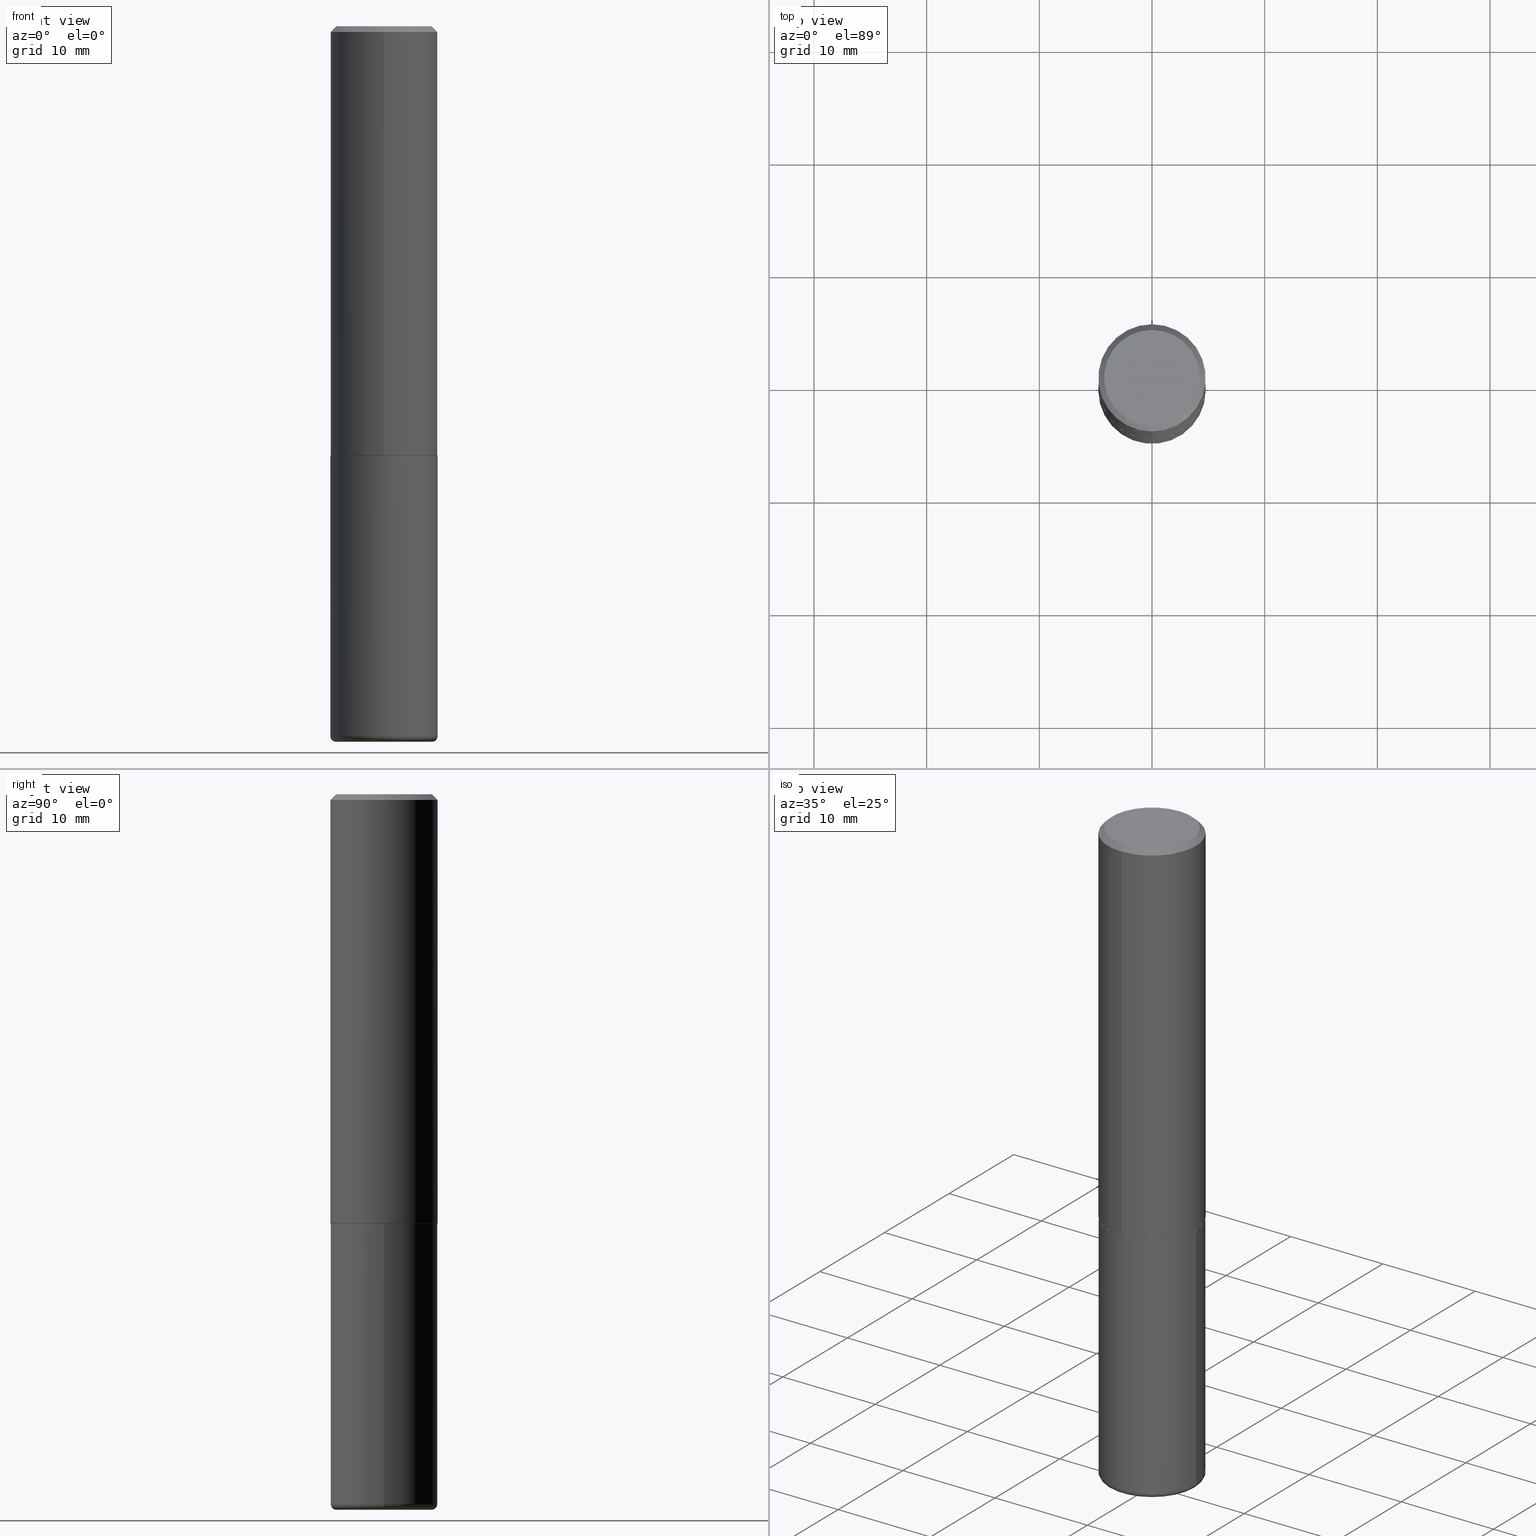
[diagram: canonical four-view strip — front | top / right | iso, engineering-drawing reading convention]
A machine part, canonical four-view strip (front | top / right | iso — engineering-drawing reading convention). The complete STEP part file that produces these views, byte-faithful:
ISO-10303-21;
HEADER;
FILE_DESCRIPTION (( 'STEP AP203' ),
    '1' );
FILE_NAME ('38329.STEP',
    '2024-03-02T23:06:02',
    ( '' ),
    ( '' ),
    'SwSTEP 2.0',
    'SolidWorks 2023',
    '' );
FILE_SCHEMA (( 'CONFIG_CONTROL_DESIGN' ));
ENDSEC;

DATA;
#1 = ORIENTED_EDGE ( 'NONE', *, *, #374, .F. ) ;
#2 = CARTESIAN_POINT ( 'NONE',  ( 1.169646248512448412E-15, 0.1674999999999998157, -4.973995980919783120E-16 ) ) ;
#3 = EDGE_CURVE ( 'NONE', #104, #303, #305, .T. ) ;
#4 = VERTEX_POINT ( 'NONE', #50 ) ;
#5 = FACE_OUTER_BOUND ( 'NONE', #76, .T. ) ;
#6 = CARTESIAN_POINT ( 'NONE',  ( 6.113672015462842613E-29, -8.728703347107866520E-15, -2.500000000000000444 ) ) ;
#7 = DIRECTION ( 'NONE',  ( 1.000000000000000000, -6.982962677686265922E-15, 4.876176775795935793E-29 ) ) ;
#8 = DIRECTION ( 'NONE',  ( 6.982962677686266711E-15, 1.000000000000000000, -3.483106191921935949E-15 ) ) ;
#9 = CARTESIAN_POINT ( 'NONE',  ( 0.1875000000000000278, -6.546527510330893974E-15, -1.500000000000000222 ) ) ;
#10 = CIRCLE ( 'NONE', #46, 0.02000000000000016348 ) ;
#11 = DIRECTION ( 'NONE',  ( -2.445468806185136597E-29, 3.491481338843145583E-15, 1.000000000000000000 ) ) ;
#12 =( CONVERSION_BASED_UNIT ( 'INCH', #247 ) LENGTH_UNIT ( ) NAMED_UNIT ( #93 ) );
#13 = CARTESIAN_POINT ( 'NONE',  ( 6.064762639339139522E-29, -8.658873720331001644E-15, -2.480000000000000426 ) ) ;
#14 = CIRCLE ( 'NONE', #84, 0.1874999999999999722 ) ;
#15 = PRODUCT_RELATED_PRODUCT_CATEGORY ( 'detail', '', ( #203 ) ) ;
#16 = EDGE_LOOP ( 'NONE', ( #110, #62 ) ) ;
#17 = EDGE_CURVE ( 'NONE', #387, #4, #384, .T. ) ;
#18 = CARTESIAN_POINT ( 'NONE',  ( 0.1675000000000000100, -9.898349595620316510E-15, -2.500000000000000444 ) ) ;
#19 = ORIENTED_EDGE ( 'NONE', *, *, #159, .T. ) ;
#20 = EDGE_LOOP ( 'NONE', ( #137, #358, #199, #298 ) ) ;
#21 = CIRCLE ( 'NONE', #220, 0.1674999999999998157 ) ;
#22 = PERSON_AND_ORGANIZATION ( #325, #343 ) ;
#23 = APPROVAL_PERSON_ORGANIZATION ( #22, #378, #412 ) ;
#24 = EDGE_CURVE ( 'NONE', #201, #330, #318, .T. ) ;
#25 = EDGE_LOOP ( 'NONE', ( #392, #364, #362, #138 ) ) ;
#26 = CARTESIAN_POINT ( 'NONE',  ( 3.664745616567681106E-29, -5.235179945962687995E-15, -1.499000000000000110 ) ) ;
#27 = EDGE_LOOP ( 'NONE', ( #204, #270, #228, #300 ) ) ;
#28 = DATE_TIME_ROLE ( 'creation_date' ) ;
#29 = AXIS2_PLACEMENT_3D ( 'NONE', #183, #11, #47 ) ;
#30 = VERTEX_POINT ( 'NONE', #311 ) ;
#31 = DIRECTION ( 'NONE',  ( -6.982962677686265922E-15, -1.000000000000000000, 2.913971193241877611E-15 ) ) ;
#32 = EDGE_LOOP ( 'NONE', ( #66, #170, #332, #336 ) ) ;
#33 = CARTESIAN_POINT ( 'NONE',  ( -1.217738394604445850E-15, -0.1674999999999998157, 7.601560558815852241E-16 ) ) ;
#34 = CC_DESIGN_DATE_AND_TIME_ASSIGNMENT ( #357, #28, ( #194 ) ) ;
#35 = ORIENTED_EDGE ( 'NONE', *, *, #17, .T. ) ;
#36 = LINE ( 'NONE', #359, #58 ) ;
#37 = AXIS2_PLACEMENT_3D ( 'NONE', #227, #198, #177 ) ;
#38 = DIRECTION ( 'NONE',  ( -2.444793606782976109E-29, 3.492448262817002669E-15, 1.000000000000000000 ) ) ;
#39 = DIRECTION ( 'NONE',  ( 4.937700262164540942E-15, 0.7071067811865441310, -0.7071067811865509034 ) ) ;
#40 = EDGE_CURVE ( 'NONE', #303, #417, #192, .T. ) ;
#41 = LINE ( 'NONE', #212, #128 ) ;
#42 = FACE_OUTER_BOUND ( 'NONE', #27, .T. ) ;
#43 = EDGE_CURVE ( 'NONE', #330, #201, #307, .T. ) ;
#44 = DIRECTION ( 'NONE',  ( 0.000000000000000000, 0.000000000000000000, 1.000000000000000000 ) ) ;
#45 = VECTOR ( 'NONE', #146, 39.37007874015748143 ) ;
#46 = AXIS2_PLACEMENT_3D ( 'NONE', #283, #371, #160 ) ;
#47 = DIRECTION ( 'NONE',  ( 1.000000000000000000, -6.982962677686265922E-15, 4.876176775795935793E-29 ) ) ;
#48 = ADVANCED_FACE ( 'NONE', ( #309 ), #97, .T. ) ;
#49 = CALENDAR_DATE ( 2024, 2, 3 ) ;
#50 = CARTESIAN_POINT ( 'NONE',  ( -0.1675000000000000100, -7.432575177745255527E-15, -2.500000000000000444 ) ) ;
#51 = APPROVAL_STATUS ( 'not_yet_approved' ) ;
#52 = DIRECTION ( 'NONE',  ( -6.982962677686265922E-15, -1.000000000000000000, 2.929595703661408850E-15 ) ) ;
#53 = ORIENTED_EDGE ( 'NONE', *, *, #43, .F. ) ;
#54 = DIRECTION ( 'NONE',  ( -6.982962677686265922E-15, -1.000000000000000000, 2.913971193241877611E-15 ) ) ;
#55 = PERSON_AND_ORGANIZATION ( #325, #343 ) ;
#56 = DIRECTION ( 'NONE',  ( -6.982962677686266711E-15, -1.000000000000000000, 3.492448262817002274E-15 ) ) ;
#57 = ORIENTED_EDGE ( 'NONE', *, *, #121, .F. ) ;
#58 = VECTOR ( 'NONE', #77, 39.37007874015748143 ) ;
#59 = CC_DESIGN_APPROVAL ( #284, ( #299 ) ) ;
#60 = DIRECTION ( 'NONE',  ( -2.444793606782976109E-29, 3.492448262817002669E-15, 1.000000000000000000 ) ) ;
#61 = DIRECTION ( 'NONE',  ( -6.982962677686265922E-15, -1.000000000000000000, 2.929595703661408850E-15 ) ) ;
#62 = ORIENTED_EDGE ( 'NONE', *, *, #89, .F. ) ;
#63 = DATE_AND_TIME ( #292, #386 ) ;
#64 = CARTESIAN_POINT ( 'NONE',  ( -1.309305502066175600E-15, -0.1875000000000000833, 6.548340492781882223E-16 ) ) ;
#65 = ADVANCED_FACE ( 'NONE', ( #80 ), #155, .T. ) ;
#66 = ORIENTED_EDGE ( 'NONE', *, *, #182, .F. ) ;
#67 = LINE ( 'NONE', #238, #253 ) ;
#68 = AXIS2_PLACEMENT_3D ( 'NONE', #13, #406, #317 ) ;
#69 = EDGE_LOOP ( 'NONE', ( #274, #230, #327, #208 ) ) ;
#70 = ADVANCED_FACE ( 'NONE', ( #42 ), #320, .T. ) ;
#71 = DIRECTION ( 'NONE',  ( 6.982962677686265922E-15, 1.000000000000000000, -3.492448262817002669E-15 ) ) ;
#72 = PRODUCT_DEFINITION_SHAPE ( 'NONE', 'NONE',  #194 ) ;
#73 = ORIENTED_EDGE ( 'NONE', *, *, #153, .T. ) ;
#74 = ADVANCED_FACE ( 'NONE', ( #286 ), #126, .T. ) ;
#75 = CARTESIAN_POINT ( 'NONE',  ( -0.1875000000000001110, -7.326606090780813796E-15, -2.480000000000000426 ) ) ;
#76 = EDGE_LOOP ( 'NONE', ( #366, #394 ) ) ;
#77 = DIRECTION ( 'NONE',  ( -2.445468806185136877E-29, 3.491481338843145188E-15, 1.000000000000000000 ) ) ;
#78 = AXIS2_PLACEMENT_3D ( 'NONE', #123, #154, #161 ) ;
#79 = CARTESIAN_POINT ( 'NONE',  ( 4.889587213565963568E-31, -6.984896525634020819E-17, -0.02000000000000004205 ) ) ;
#80 = FACE_OUTER_BOUND ( 'NONE', #413, .T. ) ;
#81 = LINE ( 'NONE', #341, #337 ) ;
#82 = ADVANCED_FACE ( 'NONE', ( #380 ), #256, .T. ) ;
#83 = DIRECTION ( 'NONE',  ( -6.982962677686265922E-15, -1.000000000000000000, 2.929595703661408850E-15 ) ) ;
#84 = AXIS2_PLACEMENT_3D ( 'NONE', #79, #398, #241 ) ;
#85 = CONICAL_SURFACE ( 'NONE', #399, 0.1864999999999999714, 0.7853981633973801113 ) ;
#86 = FACE_OUTER_BOUND ( 'NONE', #20, .T. ) ;
#87 = PERSON_AND_ORGANIZATION ( #325, #343 ) ;
#88 = DIRECTION ( 'NONE',  ( -2.445468806185136597E-29, 3.491481338843145583E-15, 1.000000000000000000 ) ) ;
#89 = EDGE_CURVE ( 'NONE', #4, #387, #189, .T. ) ;
#90 = AXIS2_PLACEMENT_3D ( 'NONE', #346, #251, #287 ) ;
#91 =( GEOMETRIC_REPRESENTATION_CONTEXT ( 3 ) GLOBAL_UNCERTAINTY_ASSIGNED_CONTEXT ( ( #125 ) ) GLOBAL_UNIT_ASSIGNED_CONTEXT ( ( #12, #114, #219 ) ) REPRESENTATION_CONTEXT ( 'NONE', 'WORKASPACE' ) );
#92 = APPROVAL_DATE_TIME ( #63, #378 ) ;
#93 = DIMENSIONAL_EXPONENTS ( 1.000000000000000000, 0.000000000000000000, 0.000000000000000000, 0.000000000000000000, 0.000000000000000000, 0.000000000000000000, 0.000000000000000000 ) ;
#94 = CARTESIAN_POINT ( 'NONE',  ( 0.000000000000000000, 0.000000000000000000, 0.000000000000000000 ) ) ;
#95 = PLANE ( 'NONE',  #37 ) ;
#96 = DATE_TIME_ROLE ( 'classification_date' ) ;
#97 = TOROIDAL_SURFACE ( 'NONE', #78, 0.1675000000000000100, 0.02000000000000016348 ) ;
#98 = COORDINATED_UNIVERSAL_TIME_OFFSET ( 5, 0, .BEHIND. ) ;
#99 = LOCAL_TIME ( 18, 6, 2.000000000000000000, #350 ) ;
#100 = CC_DESIGN_DATE_AND_TIME_ASSIGNMENT ( #132, #96, ( #299 ) ) ;
#101 = EDGE_LOOP ( 'NONE', ( #242, #416, #264, #174 ) ) ;
#102 = ORIENTED_EDGE ( 'NONE', *, *, #89, .T. ) ;
#103 = MANIFOLD_SOLID_BREP ( 'Body-Move/Copy2[1]', #250 ) ;
#104 = VERTEX_POINT ( 'NONE', #145 ) ;
#105 = AXIS2_PLACEMENT_3D ( 'NONE', #151, #376, #314 ) ;
#106 = PLANE ( 'NONE',  #342 ) ;
#107 = ORIENTED_EDGE ( 'NONE', *, *, #397, .T. ) ;
#108 = EDGE_CURVE ( 'NONE', #167, #30, #396, .T. ) ;
#109 = DIRECTION ( 'NONE',  ( -4.851104656540957175E-15, -0.7071067811865490160, -0.7071067811865460184 ) ) ;
#110 = ORIENTED_EDGE ( 'NONE', *, *, #17, .F. ) ;
#111 = DIRECTION ( 'NONE',  ( -2.445468806185136597E-29, 3.491481338843145583E-15, 1.000000000000000000 ) ) ;
#112 = DIRECTION ( 'NONE',  ( -6.982962677686265922E-15, -1.000000000000000000, 3.492448262817002669E-15 ) ) ;
#113 = AXIS2_PLACEMENT_3D ( 'NONE', #243, #304, #7 ) ;
#114 =( NAMED_UNIT ( * ) PLANE_ANGLE_UNIT ( ) SI_UNIT ( $, .RADIAN. ) );
#115 = APPLICATION_PROTOCOL_DEFINITION ( 'international standard', 'config_control_design', 1994, #261 ) ;
#116 = CC_DESIGN_PERSON_AND_ORGANIZATION_ASSIGNMENT ( #258, #197, ( #194 ) ) ;
#117 =( LENGTH_UNIT ( ) NAMED_UNIT ( * ) SI_UNIT ( $, .METRE. ) );
#118 = AXIS2_PLACEMENT_3D ( 'NONE', #262, #195, #61 ) ;
#119 = PERSON_AND_ORGANIZATION_ROLE ( 'design_owner' ) ;
#120 = DIRECTION ( 'NONE',  ( 2.438088387897960049E-29, -3.491481338843145188E-15, -1.000000000000000000 ) ) ;
#121 = EDGE_CURVE ( 'NONE', #271, #213, #21, .T. ) ;
#122 = MECHANICAL_CONTEXT ( 'NONE', #261, 'mechanical' ) ;
#123 = CARTESIAN_POINT ( 'NONE',  ( 6.064762639339139522E-29, -8.658873720331001644E-15, -2.480000000000000426 ) ) ;
#124 = APPROVAL_STATUS ( 'not_yet_approved' ) ;
#125 = UNCERTAINTY_MEASURE_WITH_UNIT (LENGTH_MEASURE( 1.000000000000000082E-05 ), #12, 'distance_accuracy_value', 'NONE');
#126 = PLANE ( 'NONE',  #236 ) ;
#127 = AXIS2_PLACEMENT_3D ( 'NONE', #135, #267, #52 ) ;
#128 = VECTOR ( 'NONE', #331, 39.37007874015748143 ) ;
#129 = LOCAL_TIME ( 18, 6, 2.000000000000000000, #221 ) ;
#130 = CARTESIAN_POINT ( 'NONE',  ( -0.1875000000000000278, -5.615780234747672457E-15, -1.500000000000000222 ) ) ;
#131 = EDGE_CURVE ( 'NONE', #167, #417, #361, .T. ) ;
#132 = DATE_AND_TIME ( #296, #206 ) ;
#133 = EDGE_CURVE ( 'NONE', #323, #30, #184, .T. ) ;
#134 = PERSON_AND_ORGANIZATION_ROLE ( 'design_supplier' ) ;
#135 = CARTESIAN_POINT ( 'NONE',  ( 3.667190410174465144E-29, -5.238672394225504989E-15, -1.500000000000000444 ) ) ;
#136 = AXIS2_PLACEMENT_3D ( 'NONE', #210, #418, #369 ) ;
#137 = ORIENTED_EDGE ( 'NONE', *, *, #43, .T. ) ;
#138 = ORIENTED_EDGE ( 'NONE', *, *, #295, .F. ) ;
#139 = CARTESIAN_POINT ( 'NONE',  ( 0.000000000000000000, 0.000000000000000000, 0.000000000000000000 ) ) ;
#140 = ORIENTED_EDGE ( 'NONE', *, *, #121, .T. ) ;
#141 = AXIS2_PLACEMENT_3D ( 'NONE', #218, #321, #8 ) ;
#142 = CYLINDRICAL_SURFACE ( 'NONE', #176, 0.1875000000000000833 ) ;
#143 = VERTEX_POINT ( 'NONE', #130 ) ;
#144 = DIRECTION ( 'NONE',  ( -2.444793606782976109E-29, 3.492448262817002669E-15, 1.000000000000000000 ) ) ;
#145 = CARTESIAN_POINT ( 'NONE',  ( -1.302322539388451720E-15, -0.1865000000000051894, -1.499999999999999778 ) ) ;
#146 = DIRECTION ( 'NONE',  ( -2.444793606782976109E-29, 3.492448262817002669E-15, 1.000000000000000000 ) ) ;
#147 = EDGE_CURVE ( 'NONE', #303, #104, #275, .T. ) ;
#148 = DIRECTION ( 'NONE',  ( -2.444793606782976109E-29, 3.492448262817002669E-15, 1.000000000000000000 ) ) ;
#149 = CARTESIAN_POINT ( 'NONE',  ( 1.328714915871423829E-15, 0.1864999999999947533, -1.500000000000000888 ) ) ;
#150 = AXIS2_PLACEMENT_3D ( 'NONE', #6, #88, #222 ) ;
#151 = CARTESIAN_POINT ( 'NONE',  ( 6.064762639339139522E-29, -8.658873720331001644E-15, -2.480000000000000426 ) ) ;
#152 = ADVANCED_FACE ( 'NONE', ( #165 ), #95, .F. ) ;
#153 = EDGE_CURVE ( 'NONE', #30, #323, #14, .T. ) ;
#154 = DIRECTION ( 'NONE',  ( -2.445468806185136597E-29, 3.491481338843145583E-15, 1.000000000000000000 ) ) ;
#155 = CONICAL_SURFACE ( 'NONE', #141, 0.1874999999999999722, 0.7853981633974469467 ) ;
#156 = APPROVAL_PERSON_ORGANIZATION ( #87, #273, #157 ) ;
#157 = APPROVAL_ROLE ( '' ) ;
#158 = DIRECTION ( 'NONE',  ( -2.445468806185136597E-29, 3.491481338843145583E-15, 1.000000000000000000 ) ) ;
#159 = EDGE_CURVE ( 'NONE', #213, #271, #313, .T. ) ;
#160 = DIRECTION ( 'NONE',  ( 1.000000000000000000, -6.982962677686275388E-15, 0.000000000000000000 ) ) ;
#161 = DIRECTION ( 'NONE',  ( 1.000000000000000000, -6.982962677686266711E-15, 4.883557194083113462E-29 ) ) ;
#162 = AXIS2_PLACEMENT_3D ( 'NONE', #94, #38, #377 ) ;
#163 = CC_DESIGN_SECURITY_CLASSIFICATION ( #299, ( #403 ) ) ;
#164 = CALENDAR_DATE ( 2024, 2, 3 ) ;
#165 = FACE_OUTER_BOUND ( 'NONE', #196, .T. ) ;
#166 = ORIENTED_EDGE ( 'NONE', *, *, #397, .F. ) ;
#167 = VERTEX_POINT ( 'NONE', #400 ) ;
#168 = CIRCLE ( 'NONE', #205, 0.1875000000000001943 ) ;
#169 = PERSON_AND_ORGANIZATION_ROLE ( 'classification_officer' ) ;
#170 = ORIENTED_EDGE ( 'NONE', *, *, #159, .F. ) ;
#171 = LINE ( 'NONE', #363, #266 ) ;
#172 = ORIENTED_EDGE ( 'NONE', *, *, #24, .F. ) ;
#173 = DIRECTION ( 'NONE',  ( -2.444793606782975829E-29, 3.492448262817002669E-15, 1.000000000000000000 ) ) ;
#174 = ORIENTED_EDGE ( 'NONE', *, *, #108, .F. ) ;
#175 = ADVANCED_FACE ( 'NONE', ( #234 ), #106, .F. ) ;
#176 = AXIS2_PLACEMENT_3D ( 'NONE', #139, #333, #391 ) ;
#177 = DIRECTION ( 'NONE',  ( -1.000000000000000000, 6.982962677686265922E-15, -4.876176775795935793E-29 ) ) ;
#178 = FACE_OUTER_BOUND ( 'NONE', #25, .T. ) ;
#179 = DIRECTION ( 'NONE',  ( -2.445468806185136597E-29, 3.491481338843145583E-15, 1.000000000000000000 ) ) ;
#180 = LINE ( 'NONE', #207, #45 ) ;
#181 = CARTESIAN_POINT ( 'NONE',  ( 3.667190410174465144E-29, -5.238672394225504989E-15, -1.500000000000000444 ) ) ;
#182 = EDGE_CURVE ( 'NONE', #271, #30, #171, .T. ) ;
#183 = CARTESIAN_POINT ( 'NONE',  ( 0.000000000000000000, 0.000000000000000000, 0.000000000000000000 ) ) ;
#184 = CIRCLE ( 'NONE', #415, 0.1874999999999999722 ) ;
#185 = CARTESIAN_POINT ( 'NONE',  ( 0.000000000000000000, 0.000000000000000000, 0.000000000000000000 ) ) ;
#186 = ADVANCED_BREP_SHAPE_REPRESENTATION ( '38329', ( #103, #232, #285 ), #91 ) ;
#187 = DATE_AND_TIME ( #49, #129 ) ;
#188 = AXIS2_PLACEMENT_3D ( 'NONE', #225, #179, #368 ) ;
#189 = CIRCLE ( 'NONE', #150, 0.1675000000000000100 ) ;
#190 = APPROVAL_DATE_TIME ( #187, #273 ) ;
#191 = DESIGN_CONTEXT ( 'detailed design', #257, 'design' ) ;
#192 = LINE ( 'NONE', #288, #410 ) ;
#193 = CARTESIAN_POINT ( 'NONE',  ( 4.889587213565963568E-31, -6.984896525634020819E-17, -0.02000000000000004205 ) ) ;
#194 = PRODUCT_DEFINITION ( 'UNKNOWN', '', #403, #191 ) ;
#195 = DIRECTION ( 'NONE',  ( -2.444793606782976109E-29, 3.492448262817002669E-15, 1.000000000000000000 ) ) ;
#196 = EDGE_LOOP ( 'NONE', ( #356, #233 ) ) ;
#197 = PERSON_AND_ORGANIZATION_ROLE ( 'creator' ) ;
#198 = DIRECTION ( 'NONE',  ( 2.438088387897960049E-29, -3.491481338843145188E-15, -1.000000000000000000 ) ) ;
#199 = ORIENTED_EDGE ( 'NONE', *, *, #200, .F. ) ;
#200 = EDGE_CURVE ( 'NONE', #334, #143, #324, .T. ) ;
#201 = VERTEX_POINT ( 'NONE', #75 ) ;
#202 = APPROVAL_STATUS ( 'not_yet_approved' ) ;
#203 = PRODUCT ( '38329', '38329', '', ( #122 ) ) ;
#204 = ORIENTED_EDGE ( 'NONE', *, *, #40, .F. ) ;
#205 = AXIS2_PLACEMENT_3D ( 'NONE', #245, #217, #31 ) ;
#206 = LOCAL_TIME ( 18, 6, 2.000000000000000000, #265 ) ;
#207 = CARTESIAN_POINT ( 'NONE',  ( 1.332267629550188243E-15, 0.1875000000000000833, -6.548340492781882223E-16 ) ) ;
#208 = ORIENTED_EDGE ( 'NONE', *, *, #209, .F. ) ;
#209 = EDGE_CURVE ( 'NONE', #104, #167, #41, .T. ) ;
#210 = CARTESIAN_POINT ( 'NONE',  ( 3.668203209277704895E-29, -5.237222008264718177E-15, -1.500000000000000222 ) ) ;
#211 = ORIENTED_EDGE ( 'NONE', *, *, #374, .T. ) ;
#212 = CARTESIAN_POINT ( 'NONE',  ( -1.302322539388451720E-15, -0.1865000000000051894, -1.499999999999999778 ) ) ;
#213 = VERTEX_POINT ( 'NONE', #308 ) ;
#214 = AXIS2_PLACEMENT_3D ( 'NONE', #246, #158, #370 ) ;
#215 = VECTOR ( 'NONE', #351, 39.37007874015748143 ) ;
#216 = FACE_OUTER_BOUND ( 'NONE', #101, .T. ) ;
#217 = DIRECTION ( 'NONE',  ( -2.444793606782976109E-29, 3.492448262817002669E-15, 1.000000000000000000 ) ) ;
#218 = CARTESIAN_POINT ( 'NONE',  ( 4.889587213565963568E-31, -6.984896525634020819E-17, -0.02000000000000004205 ) ) ;
#219 =( NAMED_UNIT ( * ) SI_UNIT ( $, .STERADIAN. ) SOLID_ANGLE_UNIT ( ) );
#220 = AXIS2_PLACEMENT_3D ( 'NONE', #349, #414, #56 ) ;
#221 = COORDINATED_UNIVERSAL_TIME_OFFSET ( 5, 0, .BEHIND. ) ;
#222 = DIRECTION ( 'NONE',  ( 1.000000000000000000, -6.982962677686271444E-15, 0.000000000000000000 ) ) ;
#223 = ADVANCED_FACE ( 'NONE', ( #335 ), #360, .T. ) ;
#224 = TOROIDAL_SURFACE ( 'NONE', #105, 0.1675000000000000100, 0.02000000000000016348 ) ;
#225 = CARTESIAN_POINT ( 'NONE',  ( 6.064762639339139522E-29, -8.658873720331001644E-15, -2.480000000000000426 ) ) ;
#226 = PERSON_AND_ORGANIZATION ( #325, #343 ) ;
#227 = CARTESIAN_POINT ( 'NONE',  ( 3.668203209277704895E-29, -5.237222008264718177E-15, -1.500000000000000222 ) ) ;
#228 = ORIENTED_EDGE ( 'NONE', *, *, #209, .T. ) ;
#229 = CALENDAR_DATE ( 2024, 2, 3 ) ;
#230 = ORIENTED_EDGE ( 'NONE', *, *, #40, .T. ) ;
#231 = COORDINATED_UNIVERSAL_TIME_OFFSET ( 5, 0, .BEHIND. ) ;
#232 = MANIFOLD_SOLID_BREP ( 'Body-Move/Copy2[2]', #401 ) ;
#233 = ORIENTED_EDGE ( 'NONE', *, *, #295, .T. ) ;
#234 = FACE_OUTER_BOUND ( 'NONE', #306, .T. ) ;
#235 = ORIENTED_EDGE ( 'NONE', *, *, #182, .T. ) ;
#236 = AXIS2_PLACEMENT_3D ( 'NONE', #404, #120, #259 ) ;
#237 = CC_DESIGN_APPROVAL ( #378, ( #403 ) ) ;
#238 = CARTESIAN_POINT ( 'NONE',  ( 1.309305502066175205E-15, 0.1874999999999999167, -0.02000000000000069431 ) ) ;
#239 = ORIENTED_EDGE ( 'NONE', *, *, #108, .T. ) ;
#240 = CC_DESIGN_PERSON_AND_ORGANIZATION_ASSIGNMENT ( #293, #169, ( #299 ) ) ;
#241 = DIRECTION ( 'NONE',  ( -6.982962677686266711E-15, -1.000000000000000000, 3.483106191921935949E-15 ) ) ;
#242 = ORIENTED_EDGE ( 'NONE', *, *, #131, .T. ) ;
#243 = CARTESIAN_POINT ( 'NONE',  ( 0.000000000000000000, 0.000000000000000000, 0.000000000000000000 ) ) ;
#244 = AXIS2_PLACEMENT_3D ( 'NONE', #26, #411, #54 ) ;
#245 = CARTESIAN_POINT ( 'NONE',  ( 3.664745616567681106E-29, -5.235179945962687995E-15, -1.499000000000000110 ) ) ;
#246 = CARTESIAN_POINT ( 'NONE',  ( 6.113672015462842613E-29, -8.728703347107866520E-15, -2.500000000000000444 ) ) ;
#247 = LENGTH_MEASURE_WITH_UNIT ( LENGTH_MEASURE( 0.02539999999999999897 ), #117 );
#248 = PERSON_AND_ORGANIZATION ( #325, #343 ) ;
#249 = ADVANCED_FACE ( 'NONE', ( #216 ), #142, .T. ) ;
#250 = CLOSED_SHELL ( 'NONE', ( #340, #372, #152, #282, #48, #74 ) ) ;
#251 = DIRECTION ( 'NONE',  ( 7.105427357601001859E-15, 1.000000000000000000, -3.491481338843145583E-15 ) ) ;
#252 = EDGE_CURVE ( 'NONE', #213, #323, #67, .T. ) ;
#253 = VECTOR ( 'NONE', #39, 39.37007874015748143 ) ;
#254 = EDGE_CURVE ( 'NONE', #201, #143, #36, .T. ) ;
#255 = APPLICATION_PROTOCOL_DEFINITION ( 'international standard', 'config_control_design', 1994, #257 ) ;
#256 = CYLINDRICAL_SURFACE ( 'NONE', #162, 0.1875000000000000833 ) ;
#257 = APPLICATION_CONTEXT ( 'configuration controlled 3d designs of mechanical parts and assemblies' ) ;
#258 = PERSON_AND_ORGANIZATION ( #325, #343 ) ;
#259 = DIRECTION ( 'NONE',  ( -1.000000000000000000, 6.982962677686265922E-15, -4.876176775795935793E-29 ) ) ;
#260 = ADVANCED_FACE ( 'NONE', ( #5 ), #393, .F. ) ;
#261 = APPLICATION_CONTEXT ( 'configuration controlled 3d designs of mechanical parts and assemblies' ) ;
#262 = CARTESIAN_POINT ( 'NONE',  ( 3.667190410174465144E-29, -5.238672394225504989E-15, -1.500000000000000444 ) ) ;
#263 = APPROVAL_ROLE ( '' ) ;
#264 = ORIENTED_EDGE ( 'NONE', *, *, #153, .F. ) ;
#265 = COORDINATED_UNIVERSAL_TIME_OFFSET ( 5, 0, .BEHIND. ) ;
#266 = VECTOR ( 'NONE', #109, 39.37007874015748143 ) ;
#267 = DIRECTION ( 'NONE',  ( -2.444793606782976109E-29, 3.492448262817002669E-15, 1.000000000000000000 ) ) ;
#268 = LOCAL_TIME ( 18, 6, 2.000000000000000000, #98 ) ;
#269 = APPROVAL_DATE_TIME ( #382, #284 ) ;
#270 = ORIENTED_EDGE ( 'NONE', *, *, #147, .T. ) ;
#271 = VERTEX_POINT ( 'NONE', #33 ) ;
#272 = CARTESIAN_POINT ( 'NONE',  ( -4.282568720966478871E-45, 6.117755563675076877E-31, 1.751709718597379003E-16 ) ) ;
#273 = APPROVAL ( #51, 'UNSPECIFIED' ) ;
#274 = ORIENTED_EDGE ( 'NONE', *, *, #3, .T. ) ;
#275 = CIRCLE ( 'NONE', #118, 0.1864999999999999714 ) ;
#276 = DIRECTION ( 'NONE',  ( 1.000000000000000000, -6.982962677686266711E-15, 0.000000000000000000 ) ) ;
#277 = EDGE_LOOP ( 'NONE', ( #1, #102, #107, #172 ) ) ;
#278 = CARTESIAN_POINT ( 'NONE',  ( 3.667190410174465144E-29, -5.238672394225504989E-15, -1.500000000000000444 ) ) ;
#279 = DIRECTION ( 'NONE',  ( 5.024295867787719235E-15, 0.7071067811865017205, 0.7071067811865933139 ) ) ;
#280 = CARTESIAN_POINT ( 'NONE',  ( 1.309305502066175205E-15, 0.1874999999999999167, -0.02000000000000069431 ) ) ;
#281 = CIRCLE ( 'NONE', #90, 0.02000000000000016348 ) ;
#282 = ADVANCED_FACE ( 'NONE', ( #178 ), #310, .T. ) ;
#283 = CARTESIAN_POINT ( 'NONE',  ( 0.1675000000000000100, -9.828519968843451634E-15, -2.480000000000000426 ) ) ;
#284 = APPROVAL ( #202, 'UNSPECIFIED' ) ;
#285 = AXIS2_PLACEMENT_3D ( 'NONE', #185, #44, #316 ) ;
#286 = FACE_OUTER_BOUND ( 'NONE', #16, .T. ) ;
#287 = DIRECTION ( 'NONE',  ( -1.000000000000000000, 7.105427357601014480E-15, 0.000000000000000000 ) ) ;
#288 = CARTESIAN_POINT ( 'NONE',  ( 1.325162202192623128E-15, 0.1864999999999947533, -1.500000000000000888 ) ) ;
#289 = DIRECTION ( 'NONE',  ( -2.445468806185136877E-29, 3.491481338843145188E-15, 1.000000000000000000 ) ) ;
#290 = DIRECTION ( 'NONE',  ( -6.982962677686266711E-15, -1.000000000000000000, 3.483106191921935949E-15 ) ) ;
#291 = AXIS2_PLACEMENT_3D ( 'NONE', #272, #144, #312 ) ;
#292 = CALENDAR_DATE ( 2024, 2, 3 ) ;
#293 = PERSON_AND_ORGANIZATION ( #325, #343 ) ;
#294 = ORIENTED_EDGE ( 'NONE', *, *, #302, .F. ) ;
#295 = EDGE_CURVE ( 'NONE', #143, #334, #297, .T. ) ;
#296 = CALENDAR_DATE ( 2024, 2, 3 ) ;
#297 = CIRCLE ( 'NONE', #348, 0.1875000000000000278 ) ;
#298 = ORIENTED_EDGE ( 'NONE', *, *, #408, .F. ) ;
#299 = SECURITY_CLASSIFICATION ( '', '', #329 ) ;
#300 = ORIENTED_EDGE ( 'NONE', *, *, #326, .F. ) ;
#301 = DIRECTION ( 'NONE',  ( 2.444793606782975829E-29, -3.492448262817002669E-15, -1.000000000000000000 ) ) ;
#302 = EDGE_CURVE ( 'NONE', #417, #323, #180, .T. ) ;
#303 = VERTEX_POINT ( 'NONE', #149 ) ;
#304 = DIRECTION ( 'NONE',  ( -2.445468806185136597E-29, 3.491481338843145583E-15, 1.000000000000000000 ) ) ;
#305 = CIRCLE ( 'NONE', #127, 0.1864999999999999714 ) ;
#306 = EDGE_LOOP ( 'NONE', ( #19, #140 ) ) ;
#307 = CIRCLE ( 'NONE', #68, 0.1875000000000000278 ) ;
#308 = CARTESIAN_POINT ( 'NONE',  ( 1.239475875289311907E-15, 0.1674999999999998157, -4.098141121621095221E-16 ) ) ;
#309 = FACE_OUTER_BOUND ( 'NONE', #277, .T. ) ;
#310 = CYLINDRICAL_SURFACE ( 'NONE', #113, 0.1875000000000000278 ) ;
#311 = CARTESIAN_POINT ( 'NONE',  ( -1.286343374582161379E-15, -0.1875000000000000555, -0.01999999999999938979 ) ) ;
#312 = DIRECTION ( 'NONE',  ( -6.982962677686266711E-15, -1.000000000000000000, 3.492448262817002274E-15 ) ) ;
#313 = CIRCLE ( 'NONE', #291, 0.1674999999999998157 ) ;
#314 = DIRECTION ( 'NONE',  ( 1.000000000000000000, -6.982962677686266711E-15, 4.883557194083113462E-29 ) ) ;
#315 = CC_DESIGN_PERSON_AND_ORGANIZATION_ASSIGNMENT ( #226, #134, ( #403 ) ) ;
#316 = DIRECTION ( 'NONE',  ( 1.000000000000000000, 0.000000000000000000, 0.000000000000000000 ) ) ;
#317 = DIRECTION ( 'NONE',  ( 1.000000000000000000, -6.982962677686261189E-15, 0.000000000000000000 ) ) ;
#318 = CIRCLE ( 'NONE', #188, 0.1875000000000000278 ) ;
#319 = FACE_OUTER_BOUND ( 'NONE', #388, .T. ) ;
#320 = CONICAL_SURFACE ( 'NONE', #385, 0.1864999999999999714, 0.7853981633973801113 ) ;
#321 = DIRECTION ( 'NONE',  ( 2.444793606782976109E-29, -3.492448262817002669E-15, -1.000000000000000000 ) ) ;
#322 = ORIENTED_EDGE ( 'NONE', *, *, #252, .F. ) ;
#323 = VERTEX_POINT ( 'NONE', #280 ) ;
#324 = CIRCLE ( 'NONE', #136, 0.1875000000000000278 ) ;
#325 = PERSON ( 'UNSPECIFIED', 'UNSPECIFIED', 'UNSPECIFIED', ('UNSPECIFIED'), ('UNSPECIFIED'), ('UNSPECIFIED') ) ;
#326 = EDGE_CURVE ( 'NONE', #417, #167, #168, .T. ) ;
#327 = ORIENTED_EDGE ( 'NONE', *, *, #131, .F. ) ;
#328 = EDGE_LOOP ( 'NONE', ( #294, #390, #239, #354 ) ) ;
#329 = SECURITY_CLASSIFICATION_LEVEL ( 'unclassified' ) ;
#330 = VERTEX_POINT ( 'NONE', #339 ) ;
#331 = DIRECTION ( 'NONE',  ( -4.937700262164211199E-15, -0.7071067811864968355, 0.7071067811865981989 ) ) ;
#332 = ORIENTED_EDGE ( 'NONE', *, *, #252, .T. ) ;
#333 = DIRECTION ( 'NONE',  ( -2.444793606782976109E-29, 3.492448262817002669E-15, 1.000000000000000000 ) ) ;
#334 = VERTEX_POINT ( 'NONE', #9 ) ;
#335 = FACE_OUTER_BOUND ( 'NONE', #32, .T. ) ;
#336 = ORIENTED_EDGE ( 'NONE', *, *, #133, .T. ) ;
#337 = VECTOR ( 'NONE', #289, 39.37007874015748143 ) ;
#338 = DIRECTION ( 'NONE',  ( 6.982962677686266711E-15, 1.000000000000000000, -3.483106191921935949E-15 ) ) ;
#339 = CARTESIAN_POINT ( 'NONE',  ( 0.1875000000000001110, -9.968179222397176653E-15, -2.480000000000000426 ) ) ;
#340 = ADVANCED_FACE ( 'NONE', ( #86 ), #345, .T. ) ;
#341 = CARTESIAN_POINT ( 'NONE',  ( 0.1875000000000000278, -1.309305502066175008E-15, 9.142831454617381013E-30 ) ) ;
#342 = AXIS2_PLACEMENT_3D ( 'NONE', #2, #301, #71 ) ;
#343 = ORGANIZATION ( 'UNSPECIFIED', 'UNSPECIFIED', '' ) ;
#344 = CC_DESIGN_PERSON_AND_ORGANIZATION_ASSIGNMENT ( #248, #119, ( #203 ) ) ;
#345 = CYLINDRICAL_SURFACE ( 'NONE', #29, 0.1875000000000000278 ) ;
#346 = CARTESIAN_POINT ( 'NONE',  ( -0.1675000000000000100, -7.468714637932833959E-15, -2.480000000000000426 ) ) ;
#347 = DIRECTION ( 'NONE',  ( -2.444793606782976109E-29, 3.492448262817002669E-15, 1.000000000000000000 ) ) ;
#348 = AXIS2_PLACEMENT_3D ( 'NONE', #395, #111, #276 ) ;
#349 = CARTESIAN_POINT ( 'NONE',  ( -4.282568720966478871E-45, 6.117755563675076877E-31, 1.751709718597379003E-16 ) ) ;
#350 = COORDINATED_UNIVERSAL_TIME_OFFSET ( 5, 0, .BEHIND. ) ;
#351 = DIRECTION ( 'NONE',  ( -2.444793606782976109E-29, 3.492448262817002669E-15, 1.000000000000000000 ) ) ;
#352 = AXIS2_PLACEMENT_3D ( 'NONE', #365, #367, #338 ) ;
#353 = APPROVAL_PERSON_ORGANIZATION ( #383, #284, #263 ) ;
#354 = ORIENTED_EDGE ( 'NONE', *, *, #133, .F. ) ;
#355 = PERSON_AND_ORGANIZATION_ROLE ( 'creator' ) ;
#356 = ORIENTED_EDGE ( 'NONE', *, *, #200, .T. ) ;
#357 = DATE_AND_TIME ( #164, #99 ) ;
#358 = ORIENTED_EDGE ( 'NONE', *, *, #254, .T. ) ;
#359 = CARTESIAN_POINT ( 'NONE',  ( -0.1875000000000000278, 1.332267629550188046E-15, -9.223003294227947991E-30 ) ) ;
#360 = CONICAL_SURFACE ( 'NONE', #352, 0.1874999999999999722, 0.7853981633974469467 ) ;
#361 = CIRCLE ( 'NONE', #244, 0.1875000000000001943 ) ;
#362 = ORIENTED_EDGE ( 'NONE', *, *, #408, .T. ) ;
#363 = CARTESIAN_POINT ( 'NONE',  ( -1.286343374582161379E-15, -0.1875000000000000555, -0.01999999999999938979 ) ) ;
#364 = ORIENTED_EDGE ( 'NONE', *, *, #24, .T. ) ;
#365 = CARTESIAN_POINT ( 'NONE',  ( 4.889587213565963568E-31, -6.984896525634020819E-17, -0.02000000000000004205 ) ) ;
#366 = ORIENTED_EDGE ( 'NONE', *, *, #3, .F. ) ;
#367 = DIRECTION ( 'NONE',  ( 2.444793606782976109E-29, -3.492448262817002669E-15, -1.000000000000000000 ) ) ;
#368 = DIRECTION ( 'NONE',  ( 1.000000000000000000, -6.982962677686261189E-15, 0.000000000000000000 ) ) ;
#369 = DIRECTION ( 'NONE',  ( 1.000000000000000000, -6.982962677686266711E-15, 0.000000000000000000 ) ) ;
#370 = DIRECTION ( 'NONE',  ( 1.000000000000000000, -6.982962677686271444E-15, 0.000000000000000000 ) ) ;
#371 = DIRECTION ( 'NONE',  ( -6.982962677686266711E-15, -1.000000000000000000, 3.491481338843145583E-15 ) ) ;
#372 = ADVANCED_FACE ( 'NONE', ( #319 ), #224, .T. ) ;
#373 = FACE_OUTER_BOUND ( 'NONE', #69, .T. ) ;
#374 = EDGE_CURVE ( 'NONE', #4, #201, #281, .T. ) ;
#375 = CARTESIAN_POINT ( 'NONE',  ( 1.332267629550206781E-15, 0.1874999999999949485, -1.499000000000000554 ) ) ;
#376 = DIRECTION ( 'NONE',  ( -2.445468806185136597E-29, 3.491481338843145583E-15, 1.000000000000000000 ) ) ;
#377 = DIRECTION ( 'NONE',  ( -6.982962677686266711E-15, -1.000000000000000000, 3.492448262817002274E-15 ) ) ;
#378 = APPROVAL ( #124, 'UNSPECIFIED' ) ;
#379 = CC_DESIGN_APPROVAL ( #273, ( #194 ) ) ;
#380 = FACE_OUTER_BOUND ( 'NONE', #328, .T. ) ;
#381 = CC_DESIGN_PERSON_AND_ORGANIZATION_ASSIGNMENT ( #55, #355, ( #403 ) ) ;
#382 = DATE_AND_TIME ( #229, #268 ) ;
#383 = PERSON_AND_ORGANIZATION ( #325, #343 ) ;
#384 = CIRCLE ( 'NONE', #214, 0.1675000000000000100 ) ;
#385 = AXIS2_PLACEMENT_3D ( 'NONE', #181, #148, #409 ) ;
#386 = LOCAL_TIME ( 18, 6, 2.000000000000000000, #231 ) ;
#387 = VERTEX_POINT ( 'NONE', #18 ) ;
#388 = EDGE_LOOP ( 'NONE', ( #35, #211, #53, #166 ) ) ;
#389 = ADVANCED_FACE ( 'NONE', ( #373 ), #85, .T. ) ;
#390 = ORIENTED_EDGE ( 'NONE', *, *, #326, .T. ) ;
#391 = DIRECTION ( 'NONE',  ( -6.982962677686266711E-15, -1.000000000000000000, 3.492448262817002274E-15 ) ) ;
#392 = ORIENTED_EDGE ( 'NONE', *, *, #254, .F. ) ;
#393 = PLANE ( 'NONE',  #402 ) ;
#394 = ORIENTED_EDGE ( 'NONE', *, *, #147, .F. ) ;
#395 = CARTESIAN_POINT ( 'NONE',  ( 3.668203209277704895E-29, -5.237222008264718177E-15, -1.500000000000000222 ) ) ;
#396 = LINE ( 'NONE', #64, #215 ) ;
#397 = EDGE_CURVE ( 'NONE', #387, #330, #10, .T. ) ;
#398 = DIRECTION ( 'NONE',  ( -2.444793606782976109E-29, 3.492448262817002669E-15, 1.000000000000000000 ) ) ;
#399 = AXIS2_PLACEMENT_3D ( 'NONE', #405, #347, #83 ) ;
#400 = CARTESIAN_POINT ( 'NONE',  ( -1.309305502066139509E-15, -0.1875000000000054123, -1.498999999999999444 ) ) ;
#401 = CLOSED_SHELL ( 'NONE', ( #389, #249, #65, #223, #82, #70, #260, #175 ) ) ;
#402 = AXIS2_PLACEMENT_3D ( 'NONE', #278, #173, #112 ) ;
#403 = PRODUCT_DEFINITION_FORMATION_WITH_SPECIFIED_SOURCE ( 'ANY', '', #203, .NOT_KNOWN. ) ;
#404 = CARTESIAN_POINT ( 'NONE',  ( 4.192264689345838731E-30, -1.688347347744895238E-14, -2.500000000000000000 ) ) ;
#405 = CARTESIAN_POINT ( 'NONE',  ( 3.667190410174465144E-29, -5.238672394225504989E-15, -1.500000000000000444 ) ) ;
#406 = DIRECTION ( 'NONE',  ( -2.445468806185136597E-29, 3.491481338843145583E-15, 1.000000000000000000 ) ) ;
#407 = SHAPE_DEFINITION_REPRESENTATION ( #72, #186 ) ;
#408 = EDGE_CURVE ( 'NONE', #330, #334, #81, .T. ) ;
#409 = DIRECTION ( 'NONE',  ( -6.982962677686265922E-15, -1.000000000000000000, 2.929595703661408850E-15 ) ) ;
#410 = VECTOR ( 'NONE', #279, 39.37007874015748143 ) ;
#411 = DIRECTION ( 'NONE',  ( -2.444793606782976109E-29, 3.492448262817002669E-15, 1.000000000000000000 ) ) ;
#412 = APPROVAL_ROLE ( '' ) ;
#413 = EDGE_LOOP ( 'NONE', ( #57, #235, #73, #322 ) ) ;
#414 = DIRECTION ( 'NONE',  ( -2.444793606782976109E-29, 3.492448262817002669E-15, 1.000000000000000000 ) ) ;
#415 = AXIS2_PLACEMENT_3D ( 'NONE', #193, #60, #290 ) ;
#416 = ORIENTED_EDGE ( 'NONE', *, *, #302, .T. ) ;
#417 = VERTEX_POINT ( 'NONE', #375 ) ;
#418 = DIRECTION ( 'NONE',  ( -2.445468806185136597E-29, 3.491481338843145583E-15, 1.000000000000000000 ) ) ;
ENDSEC;
END-ISO-10303-21;
